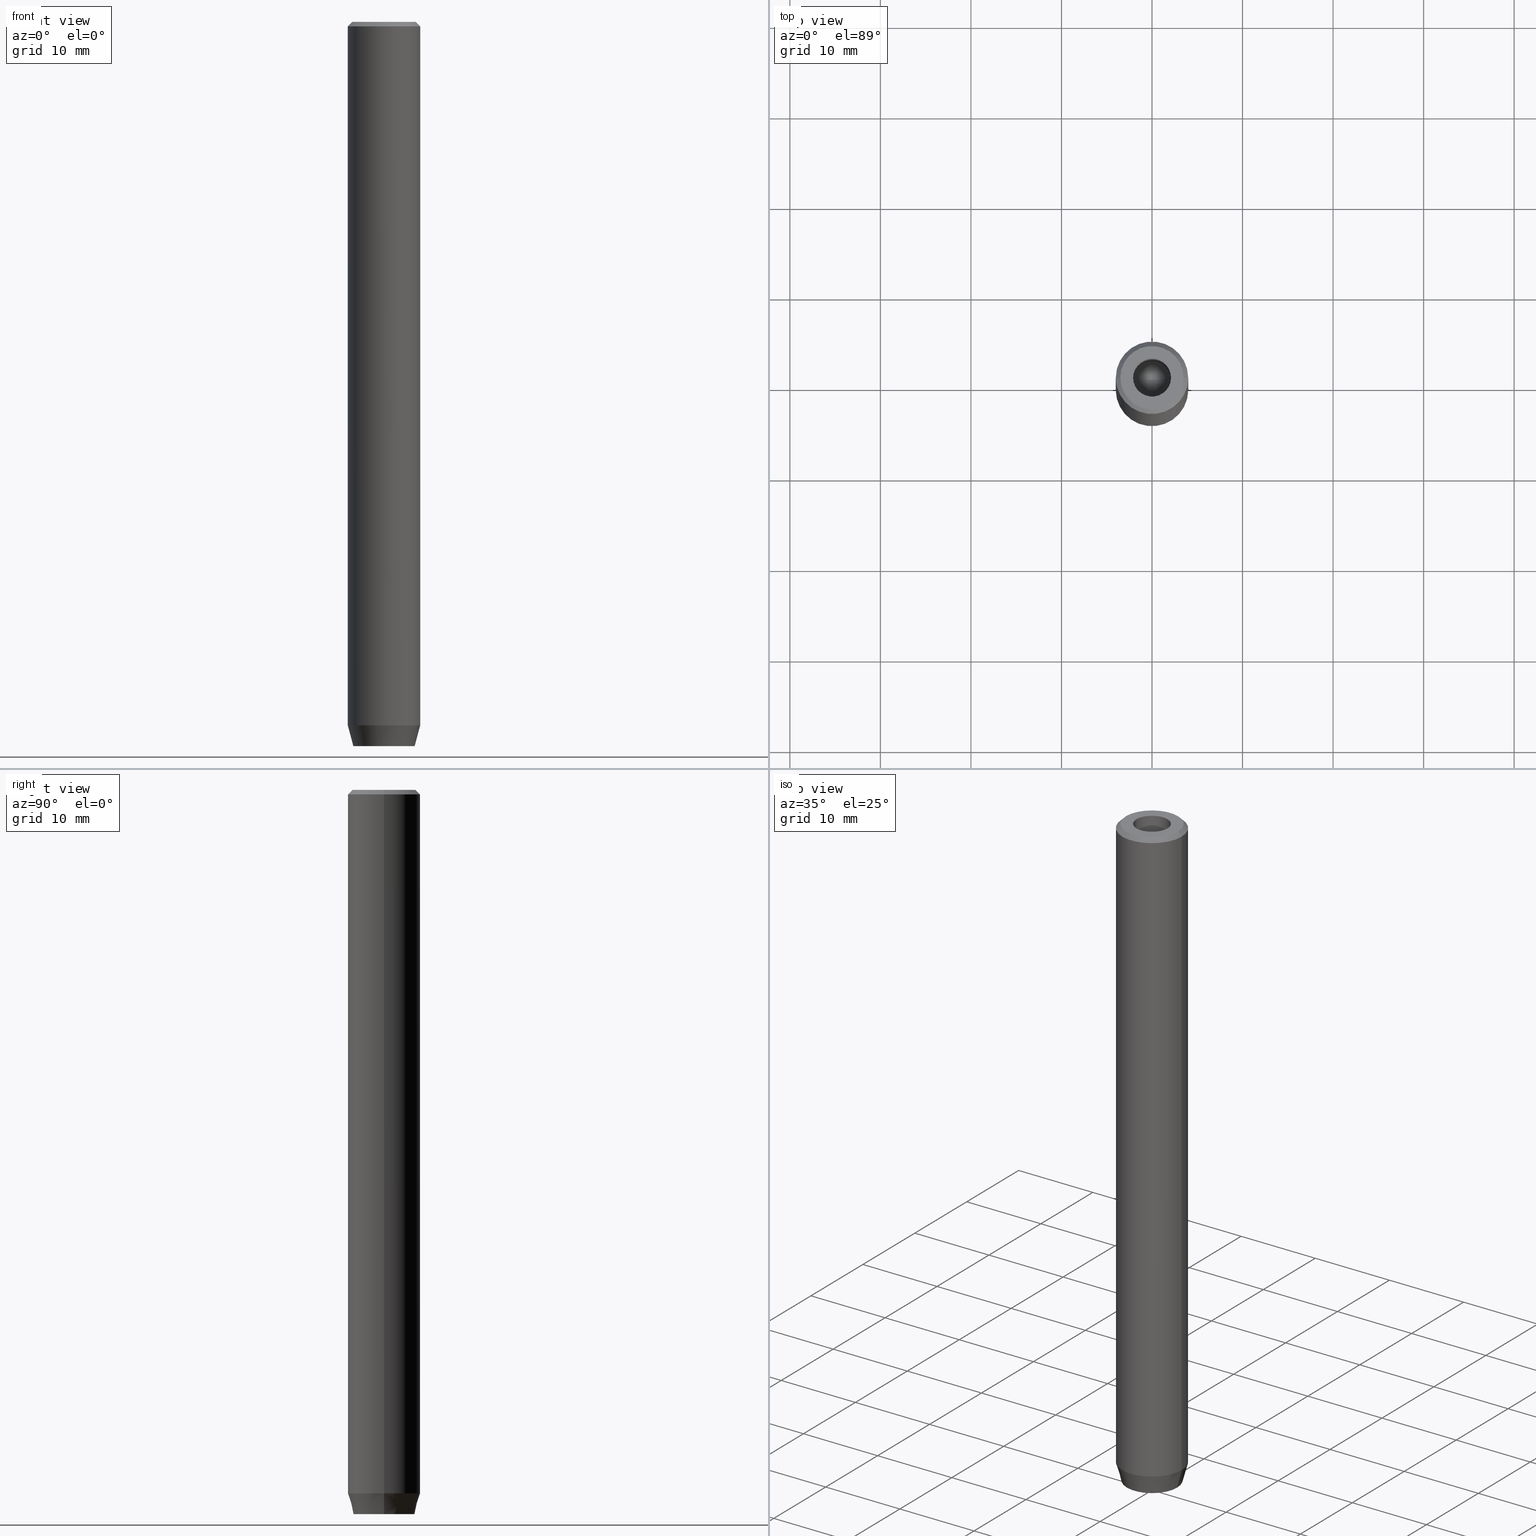
[diagram: canonical four-view strip — front | top / right | iso, engineering-drawing reading convention]
A machine part, canonical four-view strip (front | top / right | iso — engineering-drawing reading convention). The complete STEP part file that produces these views, byte-faithful:
ISO-10303-21;
HEADER;
FILE_DESCRIPTION (( 'STEP AP203' ),
    '1' );
FILE_NAME ('2cbf.STEP',
    '2024-01-02T23:08:49',
    ( '' ),
    ( '' ),
    'SwSTEP 2.0',
    'SolidWorks 2019',
    '' );
FILE_SCHEMA (( 'CONFIG_CONTROL_DESIGN' ));
ENDSEC;

DATA;
#1 = FACE_OUTER_BOUND ( 'NONE', #558, .T. ) ;
#2 = EDGE_CURVE ( 'NONE', #362, #129, #447, .T. ) ;
#3 = CARTESIAN_POINT ( 'NONE',  ( 0.000000000000000000, 2.309401076758503812, -77.19999999999998863 ) ) ;
#4 = AXIS2_PLACEMENT_3D ( 'NONE', #552, #189, #145 ) ;
#5 = VERTEX_POINT ( 'NONE', #496 ) ;
#6 = DIRECTION ( 'NONE',  ( -0.000000000000000000, -0.000000000000000000, 1.000000000000000000 ) ) ;
#7 = ORIENTED_EDGE ( 'NONE', *, *, #13, .F. ) ;
#8 = DIRECTION ( 'NONE',  ( -0.5000000000000000000, -0.8660254037844387076, 0.000000000000000000 ) ) ;
#9 =( NAMED_UNIT ( * ) SI_UNIT ( $, .STERADIAN. ) SOLID_ANGLE_UNIT ( ) );
#10 = DIRECTION ( 'NONE',  ( 1.000000000000000000, 0.000000000000000000, 0.000000000000000000 ) ) ;
#11 = DIRECTION ( 'NONE',  ( -0.000000000000000000, -0.000000000000000000, 1.000000000000000000 ) ) ;
#12 = VECTOR ( 'NONE', #136, 999.9999999999998863 ) ;
#13 = EDGE_CURVE ( 'NONE', #151, #340, #190, .T. ) ;
#14 = VECTOR ( 'NONE', #354, 1000.000000000000114 ) ;
#15 = CARTESIAN_POINT ( 'NONE',  ( 0.000000000000000000, 0.000000000000000000, 0.000000000000000000 ) ) ;
#16 = CC_DESIGN_APPROVAL ( #254, ( #269 ) ) ;
#17 = DIRECTION ( 'NONE',  ( -0.8660254037844387076, 0.5000000000000001110, 0.000000000000000000 ) ) ;
#18 = ORIENTED_EDGE ( 'NONE', *, *, #257, .F. ) ;
#19 = CARTESIAN_POINT ( 'NONE',  ( 2.168404344971008868E-16, -2.309401076758503812, -79.99999999999998579 ) ) ;
#20 = CC_DESIGN_PERSON_AND_ORGANIZATION_ASSIGNMENT ( #24, #31, ( #269 ) ) ;
#21 = PERSON_AND_ORGANIZATION ( #202, #315 ) ;
#22 = PLANE ( 'NONE',  #534 ) ;
#23 = VERTEX_POINT ( 'NONE', #134 ) ;
#24 = PERSON_AND_ORGANIZATION ( #202, #315 ) ;
#25 = LINE ( 'NONE', #205, #480 ) ;
#26 = EDGE_CURVE ( 'NONE', #463, #144, #314, .T. ) ;
#27 = DIRECTION ( 'NONE',  ( 1.000000000000000000, 0.000000000000000000, 0.000000000000000000 ) ) ;
#28 = VECTOR ( 'NONE', #561, 1000.000000000000114 ) ;
#29 = EDGE_LOOP ( 'NONE', ( #371, #171, #332 ) ) ;
#30 = LOCAL_TIME ( 0, 8, 49.00000000000000000, #455 ) ;
#31 = PERSON_AND_ORGANIZATION_ROLE ( 'classification_officer' ) ;
#32 = FACE_BOUND ( 'NONE', #551, .T. ) ;
#33 = ORIENTED_EDGE ( 'NONE', *, *, #178, .T. ) ;
#34 = CALENDAR_DATE ( 2024, 3, 1 ) ;
#35 = LINE ( 'NONE', #214, #391 ) ;
#36 = EDGE_CURVE ( 'NONE', #473, #76, #260, .T. ) ;
#37 = ORIENTED_EDGE ( 'NONE', *, *, #548, .F. ) ;
#38 = AXIS2_PLACEMENT_3D ( 'NONE', #328, #453, #407 ) ;
#39 = ORIENTED_EDGE ( 'NONE', *, *, #482, .F. ) ;
#40 = ADVANCED_FACE ( 'NONE', ( #1 ), #305, .T. ) ;
#41 = CARTESIAN_POINT ( 'NONE',  ( 0.000000000000000000, 0.000000000000000000, -77.70000000000001705 ) ) ;
#42 = AXIS2_PLACEMENT_3D ( 'NONE', #341, #390, #169 ) ;
#43 = CC_DESIGN_PERSON_AND_ORGANIZATION_ASSIGNMENT ( #425, #525, ( #44 ) ) ;
#44 = PRODUCT_DEFINITION_FORMATION_WITH_SPECIFIED_SOURCE ( 'LIBOVOLN�', '', #263, .NOT_KNOWN. ) ;
#45 = FACE_OUTER_BOUND ( 'NONE', #402, .T. ) ;
#46 = DIRECTION ( 'NONE',  ( -0.000000000000000000, -0.000000000000000000, 1.000000000000000000 ) ) ;
#47 = ORIENTED_EDGE ( 'NONE', *, *, #126, .F. ) ;
#48 = CARTESIAN_POINT ( 'NONE',  ( -4.000000000000000000, 4.898587196589412829E-16, -0.4999999999999900080 ) ) ;
#49 = ADVANCED_FACE ( 'NONE', ( #185 ), #239, .F. ) ;
#50 = CARTESIAN_POINT ( 'NONE',  ( -2.099999999999997868, 2.571758278209438999E-16, 0.000000000000000000 ) ) ;
#51 = CARTESIAN_POINT ( 'NONE',  ( -1.000000000000000444, 1.732050807568877637, -77.19999999999998863 ) ) ;
#52 = CARTESIAN_POINT ( 'NONE',  ( -3.500000000000010214, 0.000000000000000000, 0.000000000000000000 ) ) ;
#53 = CARTESIAN_POINT ( 'NONE',  ( 0.000000000000000000, 2.309401076758504257, -79.99999999999998579 ) ) ;
#54 = VECTOR ( 'NONE', #228, 1000.000000000000000 ) ;
#55 = AXIS2_PLACEMENT_3D ( 'NONE', #361, #549, #100 ) ;
#56 = APPROVAL_PERSON_ORGANIZATION ( #258, #454, #433 ) ;
#57 = CARTESIAN_POINT ( 'NONE',  ( -1.999999999999997780, 1.154700538379253238, -77.19999999999998863 ) ) ;
#58 = DIRECTION ( 'NONE',  ( 0.000000000000000000, 0.000000000000000000, -1.000000000000000000 ) ) ;
#59 = DIRECTION ( 'NONE',  ( -0.5000000000000001110, 0.8660254037844385966, 0.000000000000000000 ) ) ;
#60 = ORIENTED_EDGE ( 'NONE', *, *, #388, .F. ) ;
#61 = ADVANCED_FACE ( 'NONE', ( #273 ), #333, .T. ) ;
#62 = CARTESIAN_POINT ( 'NONE',  ( 1.000000000000000444, 1.732050807568877637, -77.19999999999998863 ) ) ;
#63 = DIRECTION ( 'NONE',  ( 1.000000000000000000, 0.000000000000000000, 0.000000000000000000 ) ) ;
#64 = CARTESIAN_POINT ( 'NONE',  ( 2.000000000000000888, -1.154700538379252572, -79.99999999999998579 ) ) ;
#65 = CIRCLE ( 'NONE', #324, 2.099999999999998757 ) ;
#66 = AXIS2_PLACEMENT_3D ( 'NONE', #162, #339, #537 ) ;
#67 = DIRECTION ( 'NONE',  ( 1.000000000000000000, 0.000000000000000000, 0.000000000000000000 ) ) ;
#68 = EDGE_LOOP ( 'NONE', ( #262, #481, #7, #106 ) ) ;
#69 = EDGE_CURVE ( 'NONE', #182, #431, #456, .T. ) ;
#70 = ORIENTED_EDGE ( 'NONE', *, *, #366, .F. ) ;
#71 = DIRECTION ( 'NONE',  ( -0.000000000000000000, -0.000000000000000000, -1.000000000000000000 ) ) ;
#72 = SECURITY_CLASSIFICATION_LEVEL ( 'unclassified' ) ;
#73 = DIRECTION ( 'NONE',  ( 0.000000000000000000, 0.000000000000000000, -1.000000000000000000 ) ) ;
#74 = CIRCLE ( 'NONE', #293, 3.383716857408421763 ) ;
#75 = APPROVAL_PERSON_ORGANIZATION ( #297, #254, #306 ) ;
#76 = VERTEX_POINT ( 'NONE', #52 ) ;
#77 = CARTESIAN_POINT ( 'NONE',  ( -1.000000000000000444, 1.732050807568877637, -79.99999999999998579 ) ) ;
#78 = FACE_OUTER_BOUND ( 'NONE', #259, .T. ) ;
#79 = APPROVAL ( #233, 'NEUR�EN�' ) ;
#80 = DATE_AND_TIME ( #34, #546 ) ;
#81 = ORIENTED_EDGE ( 'NONE', *, *, #336, .T. ) ;
#82 = VERTEX_POINT ( 'NONE', #143 ) ;
#83 = CIRCLE ( 'NONE', #398, 3.500000000000010214 ) ;
#84 = CC_DESIGN_SECURITY_CLASSIFICATION ( #269, ( #44 ) ) ;
#85 = EDGE_CURVE ( 'NONE', #514, #5, #401, .T. ) ;
#86 = ORIENTED_EDGE ( 'NONE', *, *, #460, .T. ) ;
#87 = LINE ( 'NONE', #221, #251 ) ;
#88 = CC_DESIGN_DATE_AND_TIME_ASSIGNMENT ( #568, #337, ( #269 ) ) ;
#89 = DIRECTION ( 'NONE',  ( -0.000000000000000000, -0.000000000000000000, -1.000000000000000000 ) ) ;
#90 = DIRECTION ( 'NONE',  ( -0.000000000000000000, -0.000000000000000000, 1.000000000000000000 ) ) ;
#91 = AXIS2_PLACEMENT_3D ( 'NONE', #290, #565, #27 ) ;
#92 = EDGE_LOOP ( 'NONE', ( #467, #156 ) ) ;
#93 = VECTOR ( 'NONE', #139, 1000.000000000000000 ) ;
#94 = DIRECTION ( 'NONE',  ( 0.8660254037844388186, 0.4999999999999996669, 0.000000000000000000 ) ) ;
#95 = DIRECTION ( 'NONE',  ( -0.000000000000000000, -0.000000000000000000, 1.000000000000000000 ) ) ;
#96 = FACE_OUTER_BOUND ( 'NONE', #387, .T. ) ;
#97 = DIRECTION ( 'NONE',  ( -0.000000000000000000, -0.000000000000000000, 1.000000000000000000 ) ) ;
#98 = EDGE_LOOP ( 'NONE', ( #132, #141, #380, #186 ) ) ;
#99 = VECTOR ( 'NONE', #299, 1000.000000000000000 ) ;
#100 = DIRECTION ( 'NONE',  ( 1.000000000000000000, 0.000000000000000000, 0.000000000000000000 ) ) ;
#101 = VECTOR ( 'NONE', #513, 1000.000000000000000 ) ;
#102 = ORIENTED_EDGE ( 'NONE', *, *, #170, .T. ) ;
#103 = ADVANCED_FACE ( 'NONE', ( #181, #506 ), #547, .T. ) ;
#104 = CARTESIAN_POINT ( 'NONE',  ( 2.168404344971008868E-16, -2.309401076758503812, -77.19999999999998863 ) ) ;
#105 = FACE_OUTER_BOUND ( 'NONE', #98, .T. ) ;
#106 = ORIENTED_EDGE ( 'NONE', *, *, #436, .T. ) ;
#107 = CARTESIAN_POINT ( 'NONE',  ( -2.099999999999996980, 2.571758278209438013E-16, -12.50000000000000000 ) ) ;
#108 = LINE ( 'NONE', #253, #99 ) ;
#109 = ORIENTED_EDGE ( 'NONE', *, *, #469, .T. ) ;
#110 = EDGE_CURVE ( 'NONE', #431, #514, #569, .T. ) ;
#111 = AXIS2_PLACEMENT_3D ( 'NONE', #244, #201, #238 ) ;
#112 = APPROVAL_DATE_TIME ( #164, #454 ) ;
#113 = DIRECTION ( 'NONE',  ( 1.000000000000000000, 0.000000000000000000, -0.000000000000000000 ) ) ;
#114 = ORIENTED_EDGE ( 'NONE', *, *, #460, .F. ) ;
#115 = PRODUCT_RELATED_PRODUCT_CATEGORY ( 'detail', '', ( #263 ) ) ;
#116 = CARTESIAN_POINT ( 'NONE',  ( 2.000000000000000888, -1.154700538379252572, -77.19999999999998863 ) ) ;
#117 = EDGE_LOOP ( 'NONE', ( #287, #307, #494, #70 ) ) ;
#118 = PERSON_AND_ORGANIZATION_ROLE ( 'creator' ) ;
#119 = CARTESIAN_POINT ( 'NONE',  ( 2.000000000000000888, 0.000000000000000000, -77.19999999999998863 ) ) ;
#120 = EDGE_LOOP ( 'NONE', ( #81, #501, #553, #296 ) ) ;
#121 = CLOSED_SHELL ( 'NONE', ( #155, #49, #40, #61, #505, #103, #346, #573, #266, #394, #532, #583, #562, #349, #250, #356, #146, #404, #518 ) ) ;
#122 = CARTESIAN_POINT ( 'NONE',  ( 0.000000000000000000, 2.309401076758503812, -77.19999999999998863 ) ) ;
#123 = APPROVAL_PERSON_ORGANIZATION ( #21, #79, #200 ) ;
#124 = EDGE_CURVE ( 'NONE', #428, #439, #479, .T. ) ;
#125 = ORIENTED_EDGE ( 'NONE', *, *, #137, .F. ) ;
#126 = EDGE_CURVE ( 'NONE', #256, #472, #344, .T. ) ;
#127 = ADVANCED_BREP_SHAPE_REPRESENTATION ( '2cbf', ( #426, #130 ), #392 ) ;
#128 = AXIS2_PLACEMENT_3D ( 'NONE', #370, #342, #427 ) ;
#129 = VERTEX_POINT ( 'NONE', #419 ) ;
#130 = AXIS2_PLACEMENT_3D ( 'NONE', #15, #465, #418 ) ;
#131 = CARTESIAN_POINT ( 'NONE',  ( 0.9999999999999997780, -1.732050807568878747, -77.19999999999998863 ) ) ;
#132 = ORIENTED_EDGE ( 'NONE', *, *, #482, .T. ) ;
#133 = DIRECTION ( 'NONE',  ( -0.000000000000000000, -0.000000000000000000, 1.000000000000000000 ) ) ;
#134 = CARTESIAN_POINT ( 'NONE',  ( 2.099999999999998757, 0.000000000000000000, -1.990051048614449116E-16 ) ) ;
#135 = FACE_OUTER_BOUND ( 'NONE', #29, .T. ) ;
#136 = DIRECTION ( 'NONE',  ( -0.8660254037844387076, 0.5000000000000001110, 0.000000000000000000 ) ) ;
#137 = EDGE_CURVE ( 'NONE', #439, #575, #25, .T. ) ;
#138 = AXIS2_PLACEMENT_3D ( 'NONE', #265, #353, #399 ) ;
#139 = DIRECTION ( 'NONE',  ( 5.633679745264339711E-16, 1.000000000000000000, 0.000000000000000000 ) ) ;
#140 = CARTESIAN_POINT ( 'NONE',  ( -1.000000000000000222, -1.732050807568877637, -77.19999999999998863 ) ) ;
#141 = ORIENTED_EDGE ( 'NONE', *, *, #178, .F. ) ;
#142 = CARTESIAN_POINT ( 'NONE',  ( -1.000000000000000444, 1.732050807568877637, -77.19999999999998863 ) ) ;
#143 = CARTESIAN_POINT ( 'NONE',  ( 2.000000000000000888, 1.154700538379251462, -79.99999999999998579 ) ) ;
#144 = VERTEX_POINT ( 'NONE', #116 ) ;
#145 = DIRECTION ( 'NONE',  ( 1.000000000000000000, 0.000000000000000000, 0.000000000000000000 ) ) ;
#146 = ADVANCED_FACE ( 'NONE', ( #466 ), #22, .T. ) ;
#147 = DIRECTION ( 'NONE',  ( -0.000000000000000000, -0.000000000000000000, 1.000000000000000000 ) ) ;
#148 = AXIS2_PLACEMENT_3D ( 'NONE', #459, #360, #448 ) ;
#149 = CARTESIAN_POINT ( 'NONE',  ( 0.000000000000000000, 0.000000000000000000, -0.4999999999999900080 ) ) ;
#150 = AXIS2_PLACEMENT_3D ( 'NONE', #412, #8, #487 ) ;
#151 = VERTEX_POINT ( 'NONE', #378 ) ;
#152 = DIRECTION ( 'NONE',  ( 1.000000000000000000, 0.000000000000000000, 0.000000000000000000 ) ) ;
#153 = DIRECTION ( 'NONE',  ( -0.000000000000000000, -0.000000000000000000, 1.000000000000000000 ) ) ;
#154 = ORIENTED_EDGE ( 'NONE', *, *, #316, .T. ) ;
#155 = ADVANCED_FACE ( 'NONE', ( #478 ), #197, .F. ) ;
#156 = ORIENTED_EDGE ( 'NONE', *, *, #36, .T. ) ;
#157 = PLANE ( 'NONE',  #301 ) ;
#158 = DATE_TIME_ROLE ( 'creation_date' ) ;
#159 = EDGE_LOOP ( 'NONE', ( #539, #86, #355, #529, #538, #154 ) ) ;
#160 = VECTOR ( 'NONE', #237, 1000.000000000000000 ) ;
#161 = DIRECTION ( 'NONE',  ( -0.000000000000000000, -0.000000000000000000, 1.000000000000000000 ) ) ;
#162 = CARTESIAN_POINT ( 'NONE',  ( -1.999999999999998224, 1.126735949052866956E-15, -77.19999999999998863 ) ) ;
#163 = ORIENTED_EDGE ( 'NONE', *, *, #166, .T. ) ;
#164 = DATE_AND_TIME ( #521, #252 ) ;
#165 = CARTESIAN_POINT ( 'NONE',  ( 0.000000000000000000, 0.000000000000000000, 0.000000000000000000 ) ) ;
#166 = EDGE_CURVE ( 'NONE', #517, #82, #108, .T. ) ;
#167 = LINE ( 'NONE', #122, #581 ) ;
#168 = ORIENTED_EDGE ( 'NONE', *, *, #541, .T. ) ;
#169 = DIRECTION ( 'NONE',  ( 1.000000000000000000, 0.000000000000000000, 0.000000000000000000 ) ) ;
#170 = EDGE_CURVE ( 'NONE', #472, #256, #220, .T. ) ;
#171 = ORIENTED_EDGE ( 'NONE', *, *, #69, .T. ) ;
#172 = PLANE ( 'NONE',  #556 ) ;
#173 = ORIENTED_EDGE ( 'NONE', *, *, #577, .F. ) ;
#174 = AXIS2_PLACEMENT_3D ( 'NONE', #338, #526, #67 ) ;
#175 = FACE_OUTER_BOUND ( 'NONE', #92, .T. ) ;
#176 = ORIENTED_EDGE ( 'NONE', *, *, #527, .F. ) ;
#177 = DIRECTION ( 'NONE',  ( -0.7071067811865474617, 0.000000000000000000, -0.7071067811865474617 ) ) ;
#178 = EDGE_CURVE ( 'NONE', #144, #428, #192, .T. ) ;
#179 = ORIENTED_EDGE ( 'NONE', *, *, #422, .T. ) ;
#180 = LINE ( 'NONE', #77, #281 ) ;
#181 = FACE_BOUND ( 'NONE', #235, .T. ) ;
#182 = VERTEX_POINT ( 'NONE', #384 ) ;
#183 = AXIS2_PLACEMENT_3D ( 'NONE', #131, #446, #94 ) ;
#184 = DIRECTION ( 'NONE',  ( 1.000000000000000000, 0.000000000000000000, 0.000000000000000000 ) ) ;
#185 = FACE_OUTER_BOUND ( 'NONE', #284, .T. ) ;
#186 = ORIENTED_EDGE ( 'NONE', *, *, #309, .T. ) ;
#187 = APPLICATION_CONTEXT ( 'configuration controlled 3d designs of mechanical parts and assemblies' ) ;
#188 = EDGE_CURVE ( 'NONE', #514, #431, #196, .T. ) ;
#189 = DIRECTION ( 'NONE',  ( -0.000000000000000000, -0.000000000000000000, 1.000000000000000000 ) ) ;
#190 = LINE ( 'NONE', #140, #12 ) ;
#191 = DIRECTION ( 'NONE',  ( 0.8660254037844385966, -0.5000000000000001110, 0.000000000000000000 ) ) ;
#192 = LINE ( 'NONE', #209, #420 ) ;
#193 = ORIENTED_EDGE ( 'NONE', *, *, #229, .F. ) ;
#194 = AXIS2_PLACEMENT_3D ( 'NONE', #550, #95, #323 ) ;
#195 = DIRECTION ( 'NONE',  ( 1.000000000000000000, 0.000000000000000000, 0.000000000000000000 ) ) ;
#196 = CIRCLE ( 'NONE', #174, 2.099999999999996980 ) ;
#197 = CYLINDRICAL_SURFACE ( 'NONE', #397, 2.099999999999997868 ) ;
#198 = EDGE_LOOP ( 'NONE', ( #102, #444, #179, #300 ) ) ;
#199 = DIRECTION ( 'NONE',  ( -0.000000000000000000, -0.000000000000000000, -1.000000000000000000 ) ) ;
#200 = APPROVAL_ROLE ( '' ) ;
#201 = DIRECTION ( 'NONE',  ( -0.000000000000000000, -0.000000000000000000, 1.000000000000000000 ) ) ;
#202 = PERSON ( 'NEUR�EN�', 'NEUR�EN�', 'NEUR�EN�', ('NEUR�EN�'), ('NEUR�EN�'), ('NEUR�EN�') ) ;
#203 = LINE ( 'NONE', #334, #208 ) ;
#204 = COORDINATED_UNIVERSAL_TIME_OFFSET ( 1, 0, .AHEAD. ) ;
#205 = CARTESIAN_POINT ( 'NONE',  ( -1.000000000000000222, -1.732050807568877637, -79.99999999999998579 ) ) ;
#206 = ORIENTED_EDGE ( 'NONE', *, *, #188, .T. ) ;
#207 = AXIS2_PLACEMENT_3D ( 'NONE', #423, #153, #10 ) ;
#208 = VECTOR ( 'NONE', #379, 1000.000000000000114 ) ;
#209 = CARTESIAN_POINT ( 'NONE',  ( 2.000000000000000888, -1.154700538379252572, -77.19999999999998863 ) ) ;
#210 = EDGE_CURVE ( 'NONE', #5, #23, #500, .T. ) ;
#211 = DIRECTION ( 'NONE',  ( 1.000000000000000000, 0.000000000000000000, 0.000000000000000000 ) ) ;
#212 = ORIENTED_EDGE ( 'NONE', *, *, #422, .F. ) ;
#213 = PERSON_AND_ORGANIZATION ( #202, #315 ) ;
#214 = CARTESIAN_POINT ( 'NONE',  ( 4.000000000000000000, 0.000000000000000000, 0.000000000000000000 ) ) ;
#215 = AXIS2_PLACEMENT_3D ( 'NONE', #540, #133, #312 ) ;
#216 = EDGE_CURVE ( 'NONE', #340, #575, #374, .T. ) ;
#217 = ORIENTED_EDGE ( 'NONE', *, *, #436, .F. ) ;
#218 = DIRECTION ( 'NONE',  ( 0.8660254037844385966, 0.5000000000000001110, 0.000000000000000000 ) ) ;
#219 = SHAPE_DEFINITION_REPRESENTATION ( #347, #127 ) ;
#220 = CIRCLE ( 'NONE', #91, 4.000000000000000000 ) ;
#221 = CARTESIAN_POINT ( 'NONE',  ( -2.099999999999996980, 2.571758278209438013E-16, -12.50000000000000000 ) ) ;
#222 = CC_DESIGN_PERSON_AND_ORGANIZATION_ASSIGNMENT ( #277, #470, ( #263 ) ) ;
#223 = DIRECTION ( 'NONE',  ( 1.000000000000000000, 0.000000000000000000, 0.000000000000000000 ) ) ;
#224 = ORIENTED_EDGE ( 'NONE', *, *, #2, .T. ) ;
#225 = DIRECTION ( 'NONE',  ( 0.5000000000000001110, 0.8660254037844385966, -0.000000000000000000 ) ) ;
#226 = ORIENTED_EDGE ( 'NONE', *, *, #276, .T. ) ;
#227 = DIRECTION ( 'NONE',  ( -0.000000000000000000, -0.000000000000000000, 1.000000000000000000 ) ) ;
#228 = DIRECTION ( 'NONE',  ( 0.000000000000000000, -1.000000000000000000, 0.000000000000000000 ) ) ;
#229 = EDGE_CURVE ( 'NONE', #144, #151, #247, .T. ) ;
#230 = VECTOR ( 'NONE', #321, 1000.000000000000000 ) ;
#231 = CIRCLE ( 'NONE', #55, 4.000000000000000000 ) ;
#232 = CARTESIAN_POINT ( 'NONE',  ( 0.000000000000000000, 0.000000000000000000, -1.990051048614449116E-16 ) ) ;
#233 = APPROVAL_STATUS ( 'not_yet_approved' ) ;
#234 = DIRECTION ( 'NONE',  ( 1.000000000000000000, 0.000000000000000000, 0.000000000000000000 ) ) ;
#235 = EDGE_LOOP ( 'NONE', ( #18, #303, #125, #543, #39, #357 ) ) ;
#236 = PLANE ( 'NONE',  #150 ) ;
#237 = DIRECTION ( 'NONE',  ( 0.000000000000000000, -1.000000000000000000, 0.000000000000000000 ) ) ;
#238 = DIRECTION ( 'NONE',  ( 1.000000000000000000, 0.000000000000000000, 0.000000000000000000 ) ) ;
#239 = CONICAL_SURFACE ( 'NONE', #194, 2.099999999999996980, 1.029744258676653201 ) ;
#240 = CYLINDRICAL_SURFACE ( 'NONE', #38, 4.000000000000000000 ) ;
#241 = CIRCLE ( 'NONE', #483, 4.000000000000000000 ) ;
#242 = CC_DESIGN_DATE_AND_TIME_ASSIGNMENT ( #80, #158, ( #288 ) ) ;
#243 =( NAMED_UNIT ( * ) PLANE_ANGLE_UNIT ( ) SI_UNIT ( $, .RADIAN. ) );
#244 = CARTESIAN_POINT ( 'NONE',  ( 0.000000000000000000, 0.000000000000000000, -1.990051048614449116E-16 ) ) ;
#245 = ORIENTED_EDGE ( 'NONE', *, *, #497, .F. ) ;
#246 = PERSON_AND_ORGANIZATION_ROLE ( 'creator' ) ;
#247 = LINE ( 'NONE', #331, #571 ) ;
#248 = ORIENTED_EDGE ( 'NONE', *, *, #469, .F. ) ;
#249 = DIRECTION ( 'NONE',  ( -1.000000000000000000, 0.000000000000000000, -0.000000000000000000 ) ) ;
#250 = ADVANCED_FACE ( 'NONE', ( #105 ), #522, .F. ) ;
#251 = VECTOR ( 'NONE', #498, 1000.000000000000000 ) ;
#252 = LOCAL_TIME ( 0, 8, 49.00000000000000000, #330 ) ;
#253 = CARTESIAN_POINT ( 'NONE',  ( 1.000000000000000444, 1.732050807568877637, -79.99999999999998579 ) ) ;
#254 = APPROVAL ( #429, 'NEUR�EN�' ) ;
#255 = FACE_OUTER_BOUND ( 'NONE', #278, .T. ) ;
#256 = VERTEX_POINT ( 'NONE', #475 ) ;
#257 = EDGE_CURVE ( 'NONE', #441, #517, #180, .T. ) ;
#258 = PERSON_AND_ORGANIZATION ( #202, #315 ) ;
#259 = EDGE_LOOP ( 'NONE', ( #176, #476, #443, #168 ) ) ;
#260 = CIRCLE ( 'NONE', #381, 3.500000000000010214 ) ;
#261 = VECTOR ( 'NONE', #199, 1000.000000000000000 ) ;
#262 = ORIENTED_EDGE ( 'NONE', *, *, #137, .T. ) ;
#263 = PRODUCT ( '2cbf', '2cbf', '', ( #283 ) ) ;
#264 = ORIENTED_EDGE ( 'NONE', *, *, #541, .F. ) ;
#265 = CARTESIAN_POINT ( 'NONE',  ( 0.000000000000000000, 0.000000000000000000, 0.000000000000000000 ) ) ;
#266 = ADVANCED_FACE ( 'NONE', ( #310 ), #268, .T. ) ;
#267 = CARTESIAN_POINT ( 'NONE',  ( 2.000000000000000888, 1.154700538379251462, -77.19999999999998863 ) ) ;
#268 = CONICAL_SURFACE ( 'NONE', #432, 4.000000000000000000, 0.2617993877991512397 ) ;
#269 = SECURITY_CLASSIFICATION ( '', '', #72 ) ;
#270 = ORIENTED_EDGE ( 'NONE', *, *, #85, .T. ) ;
#271 = CARTESIAN_POINT ( 'NONE',  ( 1.000000000000000444, 1.732050807568877637, -77.19999999999998863 ) ) ;
#272 = APPROVAL_DATE_TIME ( #304, #254 ) ;
#273 = FACE_OUTER_BOUND ( 'NONE', #117, .T. ) ;
#274 = ORIENTED_EDGE ( 'NONE', *, *, #388, .T. ) ;
#275 = CARTESIAN_POINT ( 'NONE',  ( 2.000000000000000888, 1.154700538379251462, -77.19999999999998863 ) ) ;
#276 = EDGE_CURVE ( 'NONE', #76, #410, #438, .T. ) ;
#277 = PERSON_AND_ORGANIZATION ( #202, #315 ) ;
#278 = EDGE_LOOP ( 'NONE', ( #367, #327, #226, #264 ) ) ;
#279 = CARTESIAN_POINT ( 'NONE',  ( 3.500000000000010214, 4.592425496802580875E-16, 0.000000000000000000 ) ) ;
#280 = CARTESIAN_POINT ( 'NONE',  ( 0.000000000000000000, 0.000000000000000000, 0.000000000000000000 ) ) ;
#281 = VECTOR ( 'NONE', #218, 1000.000000000000000 ) ;
#282 = LINE ( 'NONE', #142, #382 ) ;
#283 = MECHANICAL_CONTEXT ( 'NONE', #187, 'mechanical' ) ;
#284 = EDGE_LOOP ( 'NONE', ( #318, #415, #206 ) ) ;
#285 = CARTESIAN_POINT ( 'NONE',  ( -1.999999999999997780, 1.154700538379253238, -79.99999999999998579 ) ) ;
#286 = DIRECTION ( 'NONE',  ( -0.000000000000000000, 0.000000000000000000, -1.000000000000000000 ) ) ;
#287 = ORIENTED_EDGE ( 'NONE', *, *, #497, .T. ) ;
#288 = PRODUCT_DEFINITION ( 'NEZN�M�', '', #44, #458 ) ;
#289 = FACE_OUTER_BOUND ( 'NONE', #414, .T. ) ;
#290 = CARTESIAN_POINT ( 'NONE',  ( 0.000000000000000000, 0.000000000000000000, -77.70000000000001705 ) ) ;
#291 = ORIENTED_EDGE ( 'NONE', *, *, #2, .F. ) ;
#292 = CARTESIAN_POINT ( 'NONE',  ( -1.999999999999998668, -1.154700538379252572, -79.99999999999998579 ) ) ;
#293 = AXIS2_PLACEMENT_3D ( 'NONE', #468, #6, #152 ) ;
#294 = PERSON_AND_ORGANIZATION ( #202, #315 ) ;
#295 = DIRECTION ( 'NONE',  ( -1.000000000000000000, 0.000000000000000000, -0.000000000000000000 ) ) ;
#296 = ORIENTED_EDGE ( 'NONE', *, *, #216, .T. ) ;
#297 = PERSON_AND_ORGANIZATION ( #202, #315 ) ;
#298 = EDGE_CURVE ( 'NONE', #473, #406, #485, .T. ) ;
#299 = DIRECTION ( 'NONE',  ( 0.8660254037844385966, -0.5000000000000001110, 0.000000000000000000 ) ) ;
#300 = ORIENTED_EDGE ( 'NONE', *, *, #326, .F. ) ;
#301 = AXIS2_PLACEMENT_3D ( 'NONE', #51, #59, #507 ) ;
#302 = DIRECTION ( 'NONE',  ( -0.000000000000000000, -0.000000000000000000, 1.000000000000000000 ) ) ;
#303 = ORIENTED_EDGE ( 'NONE', *, *, #336, .F. ) ;
#304 = DATE_AND_TIME ( #400, #511 ) ;
#305 = CONICAL_SURFACE ( 'NONE', #148, 3.500000000000010214, 0.7853981633974482790 ) ;
#306 = APPROVAL_ROLE ( '' ) ;
#307 = ORIENTED_EDGE ( 'NONE', *, *, #577, .T. ) ;
#308 = LINE ( 'NONE', #574, #350 ) ;
#309 = EDGE_CURVE ( 'NONE', #463, #82, #395, .T. ) ;
#310 = FACE_OUTER_BOUND ( 'NONE', #524, .T. ) ;
#311 = CARTESIAN_POINT ( 'NONE',  ( 2.000000000000000888, 0.000000000000000000, -77.19999999999998863 ) ) ;
#312 = DIRECTION ( 'NONE',  ( 1.000000000000000000, 0.000000000000000000, 0.000000000000000000 ) ) ;
#313 = VECTOR ( 'NONE', #191, 1000.000000000000000 ) ;
#314 = LINE ( 'NONE', #311, #54 ) ;
#315 = ORGANIZATION ( 'NEUR�EN�', 'NEUR�EN�', '' ) ;
#316 = EDGE_CURVE ( 'NONE', #340, #584, #396, .T. ) ;
#317 = DIRECTION ( 'NONE',  ( 0.8571673007021116675, 0.000000000000000000, 0.5150380749100552658 ) ) ;
#318 = ORIENTED_EDGE ( 'NONE', *, *, #69, .F. ) ;
#319 = DIRECTION ( 'NONE',  ( -0.000000000000000000, -0.000000000000000000, -1.000000000000000000 ) ) ;
#320 = APPLICATION_PROTOCOL_DEFINITION ( 'international standard', 'config_control_design', 1994, #187 ) ;
#321 = DIRECTION ( 'NONE',  ( -0.000000000000000000, -0.000000000000000000, 1.000000000000000000 ) ) ;
#322 = DIRECTION ( 'NONE',  ( -0.000000000000000000, -0.000000000000000000, 1.000000000000000000 ) ) ;
#323 = DIRECTION ( 'NONE',  ( 1.000000000000000000, 0.000000000000000000, 0.000000000000000000 ) ) ;
#324 = AXIS2_PLACEMENT_3D ( 'NONE', #232, #11, #195 ) ;
#325 = FACE_OUTER_BOUND ( 'NONE', #68, .T. ) ;
#326 = EDGE_CURVE ( 'NONE', #472, #406, #35, .T. ) ;
#327 = ORIENTED_EDGE ( 'NONE', *, *, #411, .F. ) ;
#328 = CARTESIAN_POINT ( 'NONE',  ( 0.000000000000000000, 0.000000000000000000, 0.000000000000000000 ) ) ;
#329 = LINE ( 'NONE', #62, #313 ) ;
#330 = COORDINATED_UNIVERSAL_TIME_OFFSET ( 1, 0, .AHEAD. ) ;
#331 = CARTESIAN_POINT ( 'NONE',  ( 0.9999999999999997780, -1.732050807568878747, -77.19999999999998863 ) ) ;
#332 = ORIENTED_EDGE ( 'NONE', *, *, #110, .T. ) ;
#333 = CONICAL_SURFACE ( 'NONE', #499, 4.000000000000000000, 0.2617993877991512397 ) ;
#334 = CARTESIAN_POINT ( 'NONE',  ( -4.000000000000000000, 4.898587196589412829E-16, -77.70000000000001705 ) ) ;
#335 = CONICAL_SURFACE ( 'NONE', #138, 3.500000000000010214, 0.7853981633974482790 ) ;
#336 = EDGE_CURVE ( 'NONE', #575, #441, #493, .T. ) ;
#337 = DATE_TIME_ROLE ( 'classification_date' ) ;
#338 = CARTESIAN_POINT ( 'NONE',  ( 0.000000000000000000, 0.000000000000000000, -12.50000000000000000 ) ) ;
#339 = DIRECTION ( 'NONE',  ( -1.000000000000000000, 5.633679745264339711E-16, 0.000000000000000000 ) ) ;
#340 = VERTEX_POINT ( 'NONE', #542 ) ;
#341 = CARTESIAN_POINT ( 'NONE',  ( 0.000000000000000000, 0.000000000000000000, 0.000000000000000000 ) ) ;
#342 = DIRECTION ( 'NONE',  ( -0.000000000000000000, -0.000000000000000000, 1.000000000000000000 ) ) ;
#343 = DIRECTION ( 'NONE',  ( 1.000000000000000000, 0.000000000000000000, 0.000000000000000000 ) ) ;
#344 = CIRCLE ( 'NONE', #207, 4.000000000000000000 ) ;
#345 = VECTOR ( 'NONE', #177, 1000.000000000000114 ) ;
#346 = ADVANCED_FACE ( 'NONE', ( #32, #175 ), #536, .T. ) ;
#347 = PRODUCT_DEFINITION_SHAPE ( 'NONE', 'NONE',  #288 ) ;
#348 = DIRECTION ( 'NONE',  ( -0.000000000000000000, -0.000000000000000000, -1.000000000000000000 ) ) ;
#349 = ADVANCED_FACE ( 'NONE', ( #45 ), #502, .F. ) ;
#350 = VECTOR ( 'NONE', #580, 1000.000000000000114 ) ;
#351 = CC_DESIGN_APPROVAL ( #79, ( #288 ) ) ;
#352 = EDGE_LOOP ( 'NONE', ( #245, #291 ) ) ;
#353 = DIRECTION ( 'NONE',  ( 0.000000000000000000, 0.000000000000000000, -1.000000000000000000 ) ) ;
#354 = DIRECTION ( 'NONE',  ( 0.7071067811865474617, 8.659560562354932858E-17, -0.7071067811865474617 ) ) ;
#355 = ORIENTED_EDGE ( 'NONE', *, *, #26, .T. ) ;
#356 = ADVANCED_FACE ( 'NONE', ( #96 ), #172, .F. ) ;
#357 = ORIENTED_EDGE ( 'NONE', *, *, #166, .F. ) ;
#358 = DIRECTION ( 'NONE',  ( -0.8660254037844385966, 0.5000000000000001110, 0.000000000000000000 ) ) ;
#359 = CONICAL_SURFACE ( 'NONE', #215, 2.099999999999996980, 1.029744258676653201 ) ;
#360 = DIRECTION ( 'NONE',  ( 0.000000000000000000, 0.000000000000000000, -1.000000000000000000 ) ) ;
#361 = CARTESIAN_POINT ( 'NONE',  ( 0.000000000000000000, 0.000000000000000000, -0.4999999999999900080 ) ) ;
#362 = VERTEX_POINT ( 'NONE', #587 ) ;
#363 = CARTESIAN_POINT ( 'NONE',  ( 2.099999999999997868, 0.000000000000000000, 0.000000000000000000 ) ) ;
#364 = CARTESIAN_POINT ( 'NONE',  ( 0.000000000000000000, 0.000000000000000000, -77.70000000000001705 ) ) ;
#365 = CARTESIAN_POINT ( 'NONE',  ( 2.000000000000000888, 0.000000000000000000, -79.99999999999998579 ) ) ;
#366 = EDGE_CURVE ( 'NONE', #129, #472, #308, .T. ) ;
#367 = ORIENTED_EDGE ( 'NONE', *, *, #298, .F. ) ;
#368 = LINE ( 'NONE', #512, #261 ) ;
#369 = CALENDAR_DATE ( 2024, 3, 1 ) ;
#370 = CARTESIAN_POINT ( 'NONE',  ( 0.000000000000000000, 0.000000000000000000, -12.50000000000000000 ) ) ;
#371 = ORIENTED_EDGE ( 'NONE', *, *, #375, .F. ) ;
#372 = ORIENTED_EDGE ( 'NONE', *, *, #257, .T. ) ;
#373 = LINE ( 'NONE', #554, #491 ) ;
#374 = LINE ( 'NONE', #557, #101 ) ;
#375 = EDGE_CURVE ( 'NONE', #182, #514, #87, .T. ) ;
#376 = APPLICATION_CONTEXT ( 'configuration controlled 3d designs of mechanical parts and assemblies' ) ;
#377 = CALENDAR_DATE ( 2024, 3, 1 ) ;
#378 = CARTESIAN_POINT ( 'NONE',  ( 2.168404344971008868E-16, -2.309401076758503812, -77.19999999999998863 ) ) ;
#379 = DIRECTION ( 'NONE',  ( -0.2588190451025225158, 3.169619151431785895E-17, 0.9659258262890677571 ) ) ;
#380 = ORIENTED_EDGE ( 'NONE', *, *, #26, .F. ) ;
#381 = AXIS2_PLACEMENT_3D ( 'NONE', #280, #90, #503 ) ;
#382 = VECTOR ( 'NONE', #461, 1000.000000000000000 ) ;
#383 = CC_DESIGN_APPROVAL ( #454, ( #44 ) ) ;
#384 = CARTESIAN_POINT ( 'NONE',  ( -3.370670652075219192E-15, 0.000000000000000000, -13.76180729995787644 ) ) ;
#385 = DIRECTION ( 'NONE',  ( 0.000000000000000000, -0.000000000000000000, 1.000000000000000000 ) ) ;
#386 = ORIENTED_EDGE ( 'NONE', *, *, #210, .F. ) ;
#387 = EDGE_LOOP ( 'NONE', ( #163, #389, #114, #274 ) ) ;
#388 = EDGE_CURVE ( 'NONE', #533, #517, #167, .T. ) ;
#389 = ORIENTED_EDGE ( 'NONE', *, *, #309, .F. ) ;
#390 = DIRECTION ( 'NONE',  ( -0.000000000000000000, -0.000000000000000000, 1.000000000000000000 ) ) ;
#391 = VECTOR ( 'NONE', #302, 1000.000000000000000 ) ;
#392 =( GEOMETRIC_REPRESENTATION_CONTEXT ( 3 ) GLOBAL_UNCERTAINTY_ASSIGNED_CONTEXT ( ( #576 ) ) GLOBAL_UNIT_ASSIGNED_CONTEXT ( ( #462, #243, #9 ) ) REPRESENTATION_CONTEXT ( 'NONE', 'WORKASPACE' ) );
#393 = ORIENTED_EDGE ( 'NONE', *, *, #85, .F. ) ;
#394 = ADVANCED_FACE ( 'NONE', ( #255 ), #335, .T. ) ;
#395 = LINE ( 'NONE', #267, #471 ) ;
#396 = LINE ( 'NONE', #585, #93 ) ;
#397 = AXIS2_PLACEMENT_3D ( 'NONE', #165, #161, #63 ) ;
#398 = AXIS2_PLACEMENT_3D ( 'NONE', #403, #227, #520 ) ;
#399 = DIRECTION ( 'NONE',  ( -1.000000000000000000, 0.000000000000000000, 0.000000000000000000 ) ) ;
#400 = CALENDAR_DATE ( 2024, 3, 1 ) ;
#401 = LINE ( 'NONE', #50, #230 ) ;
#402 = EDGE_LOOP ( 'NONE', ( #563, #217, #193, #33 ) ) ;
#403 = CARTESIAN_POINT ( 'NONE',  ( 0.000000000000000000, 0.000000000000000000, 0.000000000000000000 ) ) ;
#404 = ADVANCED_FACE ( 'NONE', ( #135 ), #359, .F. ) ;
#405 = CARTESIAN_POINT ( 'NONE',  ( 0.000000000000000000, 0.000000000000000000, -79.99999999999998579 ) ) ;
#406 = VERTEX_POINT ( 'NONE', #450 ) ;
#407 = DIRECTION ( 'NONE',  ( 1.000000000000000000, 0.000000000000000000, 0.000000000000000000 ) ) ;
#408 = VECTOR ( 'NONE', #317, 1000.000000000000000 ) ;
#409 = CYLINDRICAL_SURFACE ( 'NONE', #4, 2.099999999999997868 ) ;
#410 = VERTEX_POINT ( 'NONE', #48 ) ;
#411 = EDGE_CURVE ( 'NONE', #76, #473, #83, .T. ) ;
#412 = CARTESIAN_POINT ( 'NONE',  ( -1.000000000000000222, -1.732050807568877637, -77.19999999999998863 ) ) ;
#413 = APPLICATION_PROTOCOL_DEFINITION ( 'international standard', 'config_control_design', 1994, #376 ) ;
#414 = EDGE_LOOP ( 'NONE', ( #393, #586, #578, #109 ) ) ;
#415 = ORIENTED_EDGE ( 'NONE', *, *, #375, .T. ) ;
#416 = CARTESIAN_POINT ( 'NONE',  ( 2.099999999999996980, 0.000000000000000000, -12.50000000000000000 ) ) ;
#417 = CC_DESIGN_PERSON_AND_ORGANIZATION_ASSIGNMENT ( #294, #246, ( #44 ) ) ;
#418 = DIRECTION ( 'NONE',  ( 1.000000000000000000, 0.000000000000000000, 0.000000000000000000 ) ) ;
#419 = CARTESIAN_POINT ( 'NONE',  ( 3.383716857408421763, 0.000000000000000000, -79.99999999999998579 ) ) ;
#420 = VECTOR ( 'NONE', #71, 1000.000000000000000 ) ;
#421 = LINE ( 'NONE', #104, #523 ) ;
#422 = EDGE_CURVE ( 'NONE', #410, #406, #241, .T. ) ;
#423 = CARTESIAN_POINT ( 'NONE',  ( 0.000000000000000000, 0.000000000000000000, -77.70000000000001705 ) ) ;
#424 = ORIENTED_EDGE ( 'NONE', *, *, #210, .T. ) ;
#425 = PERSON_AND_ORGANIZATION ( #202, #315 ) ;
#426 = MANIFOLD_SOLID_BREP ( 'Vrt�k z�vitn�ku pro M5 z�vit1', #121 ) ;
#427 = DIRECTION ( 'NONE',  ( 1.000000000000000000, 0.000000000000000000, 0.000000000000000000 ) ) ;
#428 = VERTEX_POINT ( 'NONE', #64 ) ;
#429 = APPROVAL_STATUS ( 'not_yet_approved' ) ;
#430 = CARTESIAN_POINT ( 'NONE',  ( 0.9999999999999997780, -1.732050807568878747, -79.99999999999998579 ) ) ;
#431 = VERTEX_POINT ( 'NONE', #416 ) ;
#432 = AXIS2_PLACEMENT_3D ( 'NONE', #41, #495, #343 ) ;
#433 = APPROVAL_ROLE ( '' ) ;
#434 = CARTESIAN_POINT ( 'NONE',  ( -1.999999999999998224, 1.126735949052866956E-15, -79.99999999999998579 ) ) ;
#435 = ORIENTED_EDGE ( 'NONE', *, *, #366, .T. ) ;
#436 = EDGE_CURVE ( 'NONE', #151, #439, #421, .T. ) ;
#437 = COORDINATED_UNIVERSAL_TIME_OFFSET ( 1, 0, .AHEAD. ) ;
#438 = LINE ( 'NONE', #545, #345 ) ;
#439 = VERTEX_POINT ( 'NONE', #19 ) ;
#440 = FACE_OUTER_BOUND ( 'NONE', #120, .T. ) ;
#441 = VERTEX_POINT ( 'NONE', #285 ) ;
#442 = EDGE_CURVE ( 'NONE', #431, #23, #464, .T. ) ;
#443 = ORIENTED_EDGE ( 'NONE', *, *, #326, .T. ) ;
#444 = ORIENTED_EDGE ( 'NONE', *, *, #527, .T. ) ;
#445 = CARTESIAN_POINT ( 'NONE',  ( 3.500000000000010214, 4.286263797015748428E-16, 0.000000000000000000 ) ) ;
#446 = DIRECTION ( 'NONE',  ( 0.4999999999999996669, -0.8660254037844388186, 0.000000000000000000 ) ) ;
#447 = CIRCLE ( 'NONE', #555, 3.383716857408421763 ) ;
#448 = DIRECTION ( 'NONE',  ( -1.000000000000000000, 0.000000000000000000, 0.000000000000000000 ) ) ;
#449 = ORIENTED_EDGE ( 'NONE', *, *, #36, .F. ) ;
#450 = CARTESIAN_POINT ( 'NONE',  ( 4.000000000000000000, 0.000000000000000000, -0.4999999999999900080 ) ) ;
#451 = CC_DESIGN_PERSON_AND_ORGANIZATION_ASSIGNMENT ( #213, #118, ( #288 ) ) ;
#452 = CARTESIAN_POINT ( 'NONE',  ( 2.099999999999996980, 0.000000000000000000, -12.50000000000000000 ) ) ;
#453 = DIRECTION ( 'NONE',  ( -0.000000000000000000, -0.000000000000000000, 1.000000000000000000 ) ) ;
#454 = APPROVAL ( #474, 'NEUR�EN�' ) ;
#455 = COORDINATED_UNIVERSAL_TIME_OFFSET ( 1, 0, .AHEAD. ) ;
#456 = LINE ( 'NONE', #452, #408 ) ;
#457 = FACE_OUTER_BOUND ( 'NONE', #198, .T. ) ;
#458 = DESIGN_CONTEXT ( 'detailed design', #376, 'design' ) ;
#459 = CARTESIAN_POINT ( 'NONE',  ( 0.000000000000000000, 0.000000000000000000, 0.000000000000000000 ) ) ;
#460 = EDGE_CURVE ( 'NONE', #533, #463, #329, .T. ) ;
#461 = DIRECTION ( 'NONE',  ( 0.8660254037844385966, 0.5000000000000001110, 0.000000000000000000 ) ) ;
#462 =( LENGTH_UNIT ( ) NAMED_UNIT ( * ) SI_UNIT ( .MILLI., .METRE. ) );
#463 = VERTEX_POINT ( 'NONE', #275 ) ;
#464 = LINE ( 'NONE', #363, #579 ) ;
#465 = DIRECTION ( 'NONE',  ( 0.000000000000000000, 0.000000000000000000, 1.000000000000000000 ) ) ;
#466 = FACE_OUTER_BOUND ( 'NONE', #159, .T. ) ;
#467 = ORIENTED_EDGE ( 'NONE', *, *, #411, .T. ) ;
#468 = CARTESIAN_POINT ( 'NONE',  ( 0.000000000000000000, 0.000000000000000000, -79.99999999999998579 ) ) ;
#469 = EDGE_CURVE ( 'NONE', #23, #5, #65, .T. ) ;
#470 = PERSON_AND_ORGANIZATION_ROLE ( 'design_owner' ) ;
#471 = VECTOR ( 'NONE', #89, 1000.000000000000000 ) ;
#472 = VERTEX_POINT ( 'NONE', #504 ) ;
#473 = VERTEX_POINT ( 'NONE', #279 ) ;
#474 = APPROVAL_STATUS ( 'not_yet_approved' ) ;
#475 = CARTESIAN_POINT ( 'NONE',  ( -4.000000000000000000, 4.898587196589412829E-16, -77.70000000000001705 ) ) ;
#476 = ORIENTED_EDGE ( 'NONE', *, *, #126, .T. ) ;
#477 = APPROVAL_DATE_TIME ( #560, #79 ) ;
#478 = FACE_OUTER_BOUND ( 'NONE', #488, .T. ) ;
#479 = LINE ( 'NONE', #430, #28 ) ;
#480 = VECTOR ( 'NONE', #17, 999.9999999999998863 ) ;
#481 = ORIENTED_EDGE ( 'NONE', *, *, #216, .F. ) ;
#482 = EDGE_CURVE ( 'NONE', #82, #428, #559, .T. ) ;
#483 = AXIS2_PLACEMENT_3D ( 'NONE', #149, #515, #184 ) ;
#484 = LOCAL_TIME ( 0, 8, 49.00000000000000000, #204 ) ;
#485 = LINE ( 'NONE', #445, #14 ) ;
#486 = ORIENTED_EDGE ( 'NONE', *, *, #188, .F. ) ;
#487 = DIRECTION ( 'NONE',  ( 0.8660254037844385966, -0.4999999999999999445, 0.000000000000000000 ) ) ;
#488 = EDGE_LOOP ( 'NONE', ( #486, #270, #424, #519 ) ) ;
#489 = EDGE_CURVE ( 'NONE', #584, #441, #368, .T. ) ;
#490 = ORIENTED_EDGE ( 'NONE', *, *, #298, .T. ) ;
#491 = VECTOR ( 'NONE', #322, 1000.000000000000000 ) ;
#492 = COORDINATED_UNIVERSAL_TIME_OFFSET ( 1, 0, .AHEAD. ) ;
#493 = LINE ( 'NONE', #434, #509 ) ;
#494 = ORIENTED_EDGE ( 'NONE', *, *, #170, .F. ) ;
#495 = DIRECTION ( 'NONE',  ( -0.000000000000000000, -0.000000000000000000, 1.000000000000000000 ) ) ;
#496 = CARTESIAN_POINT ( 'NONE',  ( -2.099999999999998757, 2.571758278209439985E-16, -1.990051048614449116E-16 ) ) ;
#497 = EDGE_CURVE ( 'NONE', #129, #362, #74, .T. ) ;
#498 = DIRECTION ( 'NONE',  ( -0.8571673007021116675, 1.049727191138617833E-16, 0.5150380749100552658 ) ) ;
#499 = AXIS2_PLACEMENT_3D ( 'NONE', #364, #147, #223 ) ;
#500 = CIRCLE ( 'NONE', #111, 2.099999999999998757 ) ;
#501 = ORIENTED_EDGE ( 'NONE', *, *, #489, .F. ) ;
#502 = PLANE ( 'NONE',  #183 ) ;
#503 = DIRECTION ( 'NONE',  ( 1.000000000000000000, 0.000000000000000000, 0.000000000000000000 ) ) ;
#504 = CARTESIAN_POINT ( 'NONE',  ( 4.000000000000000000, 0.000000000000000000, -77.70000000000001705 ) ) ;
#505 = ADVANCED_FACE ( 'NONE', ( #457 ), #240, .T. ) ;
#506 = FACE_OUTER_BOUND ( 'NONE', #352, .T. ) ;
#507 = DIRECTION ( 'NONE',  ( -0.8660254037844385966, -0.5000000000000001110, 0.000000000000000000 ) ) ;
#508 = AXIS2_PLACEMENT_3D ( 'NONE', #582, #385, #211 ) ;
#509 = VECTOR ( 'NONE', #530, 1000.000000000000000 ) ;
#510 = CARTESIAN_POINT ( 'NONE',  ( 0.000000000000000000, 3.383716857408421763, -79.99999999999998579 ) ) ;
#511 = LOCAL_TIME ( 0, 8, 49.00000000000000000, #492 ) ;
#512 = CARTESIAN_POINT ( 'NONE',  ( -1.999999999999997780, 1.154700538379253238, -77.19999999999998863 ) ) ;
#513 = DIRECTION ( 'NONE',  ( -0.000000000000000000, -0.000000000000000000, -1.000000000000000000 ) ) ;
#514 = VERTEX_POINT ( 'NONE', #107 ) ;
#515 = DIRECTION ( 'NONE',  ( 0.000000000000000000, 0.000000000000000000, -1.000000000000000000 ) ) ;
#516 = CARTESIAN_POINT ( 'NONE',  ( 0.000000000000000000, 0.000000000000000000, -77.19999999999998863 ) ) ;
#517 = VERTEX_POINT ( 'NONE', #53 ) ;
#518 = ADVANCED_FACE ( 'NONE', ( #289 ), #409, .F. ) ;
#519 = ORIENTED_EDGE ( 'NONE', *, *, #442, .F. ) ;
#520 = DIRECTION ( 'NONE',  ( 1.000000000000000000, 0.000000000000000000, 0.000000000000000000 ) ) ;
#521 = CALENDAR_DATE ( 2024, 3, 1 ) ;
#522 = PLANE ( 'NONE',  #535 ) ;
#523 = VECTOR ( 'NONE', #319, 1000.000000000000000 ) ;
#524 = EDGE_LOOP ( 'NONE', ( #173, #224, #435, #47 ) ) ;
#525 = PERSON_AND_ORGANIZATION_ROLE ( 'design_supplier' ) ;
#526 = DIRECTION ( 'NONE',  ( -0.000000000000000000, -0.000000000000000000, 1.000000000000000000 ) ) ;
#527 = EDGE_CURVE ( 'NONE', #256, #410, #373, .T. ) ;
#528 = DIRECTION ( 'NONE',  ( -0.8660254037844388186, -0.4999999999999996114, 0.000000000000000000 ) ) ;
#529 = ORIENTED_EDGE ( 'NONE', *, *, #229, .T. ) ;
#530 = DIRECTION ( 'NONE',  ( 5.633679745264339711E-16, 1.000000000000000000, 0.000000000000000000 ) ) ;
#531 = AXIS2_PLACEMENT_3D ( 'NONE', #510, #58, #249 ) ;
#532 = ADVANCED_FACE ( 'NONE', ( #564 ), #157, .F. ) ;
#533 = VERTEX_POINT ( 'NONE', #3 ) ;
#534 = AXIS2_PLACEMENT_3D ( 'NONE', #516, #73, #295 ) ;
#535 = AXIS2_PLACEMENT_3D ( 'NONE', #119, #113, #286 ) ;
#536 = PLANE ( 'NONE',  #508 ) ;
#537 = DIRECTION ( 'NONE',  ( -5.633679745264339711E-16, -1.000000000000000000, 0.000000000000000000 ) ) ;
#538 = ORIENTED_EDGE ( 'NONE', *, *, #13, .T. ) ;
#539 = ORIENTED_EDGE ( 'NONE', *, *, #548, .T. ) ;
#540 = CARTESIAN_POINT ( 'NONE',  ( 0.000000000000000000, 0.000000000000000000, -12.50000000000000000 ) ) ;
#541 = EDGE_CURVE ( 'NONE', #406, #410, #231, .T. ) ;
#542 = CARTESIAN_POINT ( 'NONE',  ( -1.999999999999998668, -1.154700538379252572, -77.19999999999998863 ) ) ;
#543 = ORIENTED_EDGE ( 'NONE', *, *, #124, .F. ) ;
#544 = ORIENTED_EDGE ( 'NONE', *, *, #489, .T. ) ;
#545 = CARTESIAN_POINT ( 'NONE',  ( -3.500000000000010214, 0.000000000000000000, 0.000000000000000000 ) ) ;
#546 = LOCAL_TIME ( 0, 8, 49.00000000000000000, #437 ) ;
#547 = PLANE ( 'NONE',  #531 ) ;
#548 = EDGE_CURVE ( 'NONE', #584, #533, #282, .T. ) ;
#549 = DIRECTION ( 'NONE',  ( 0.000000000000000000, 0.000000000000000000, -1.000000000000000000 ) ) ;
#550 = CARTESIAN_POINT ( 'NONE',  ( 0.000000000000000000, 0.000000000000000000, -12.50000000000000000 ) ) ;
#551 = EDGE_LOOP ( 'NONE', ( #248, #386 ) ) ;
#552 = CARTESIAN_POINT ( 'NONE',  ( 0.000000000000000000, 0.000000000000000000, 0.000000000000000000 ) ) ;
#553 = ORIENTED_EDGE ( 'NONE', *, *, #316, .F. ) ;
#554 = CARTESIAN_POINT ( 'NONE',  ( -4.000000000000000000, 4.898587196589412829E-16, 0.000000000000000000 ) ) ;
#555 = AXIS2_PLACEMENT_3D ( 'NONE', #405, #46, #234 ) ;
#556 = AXIS2_PLACEMENT_3D ( 'NONE', #271, #225, #358 ) ;
#557 = CARTESIAN_POINT ( 'NONE',  ( -1.999999999999998668, -1.154700538379252572, -77.19999999999998863 ) ) ;
#558 = EDGE_LOOP ( 'NONE', ( #449, #490, #212, #566 ) ) ;
#559 = LINE ( 'NONE', #365, #160 ) ;
#560 = DATE_AND_TIME ( #369, #30 ) ;
#561 = DIRECTION ( 'NONE',  ( -0.8660254037844388186, -0.4999999999999996114, 0.000000000000000000 ) ) ;
#562 = ADVANCED_FACE ( 'NONE', ( #325 ), #236, .F. ) ;
#563 = ORIENTED_EDGE ( 'NONE', *, *, #124, .T. ) ;
#564 = FACE_OUTER_BOUND ( 'NONE', #572, .T. ) ;
#565 = DIRECTION ( 'NONE',  ( -0.000000000000000000, -0.000000000000000000, 1.000000000000000000 ) ) ;
#566 = ORIENTED_EDGE ( 'NONE', *, *, #276, .F. ) ;
#567 = CYLINDRICAL_SURFACE ( 'NONE', #42, 4.000000000000000000 ) ;
#568 = DATE_AND_TIME ( #377, #484 ) ;
#569 = CIRCLE ( 'NONE', #128, 2.099999999999996980 ) ;
#570 = PLANE ( 'NONE',  #66 ) ;
#571 = VECTOR ( 'NONE', #528, 1000.000000000000114 ) ;
#572 = EDGE_LOOP ( 'NONE', ( #372, #60, #37, #544 ) ) ;
#573 = ADVANCED_FACE ( 'NONE', ( #78 ), #567, .T. ) ;
#574 = CARTESIAN_POINT ( 'NONE',  ( 4.000000000000000000, 0.000000000000000000, -77.70000000000001705 ) ) ;
#575 = VERTEX_POINT ( 'NONE', #292 ) ;
#576 = UNCERTAINTY_MEASURE_WITH_UNIT (LENGTH_MEASURE( 1.000000000000000082E-05 ), #462, 'distance_accuracy_value', 'NONE');
#577 = EDGE_CURVE ( 'NONE', #362, #256, #203, .T. ) ;
#578 = ORIENTED_EDGE ( 'NONE', *, *, #442, .T. ) ;
#579 = VECTOR ( 'NONE', #97, 1000.000000000000000 ) ;
#580 = DIRECTION ( 'NONE',  ( 0.2588190451025225158, 0.000000000000000000, 0.9659258262890677571 ) ) ;
#581 = VECTOR ( 'NONE', #348, 1000.000000000000000 ) ;
#582 = CARTESIAN_POINT ( 'NONE',  ( 0.000000000000000000, 0.000000000000000000, 0.000000000000000000 ) ) ;
#583 = ADVANCED_FACE ( 'NONE', ( #440 ), #570, .F. ) ;
#584 = VERTEX_POINT ( 'NONE', #57 ) ;
#585 = CARTESIAN_POINT ( 'NONE',  ( -1.999999999999998224, 1.126735949052866956E-15, -77.19999999999998863 ) ) ;
#586 = ORIENTED_EDGE ( 'NONE', *, *, #110, .F. ) ;
#587 = CARTESIAN_POINT ( 'NONE',  ( -3.383716857408421763, 4.521222607617788427E-16, -79.99999999999998579 ) ) ;
ENDSEC;
END-ISO-10303-21;
